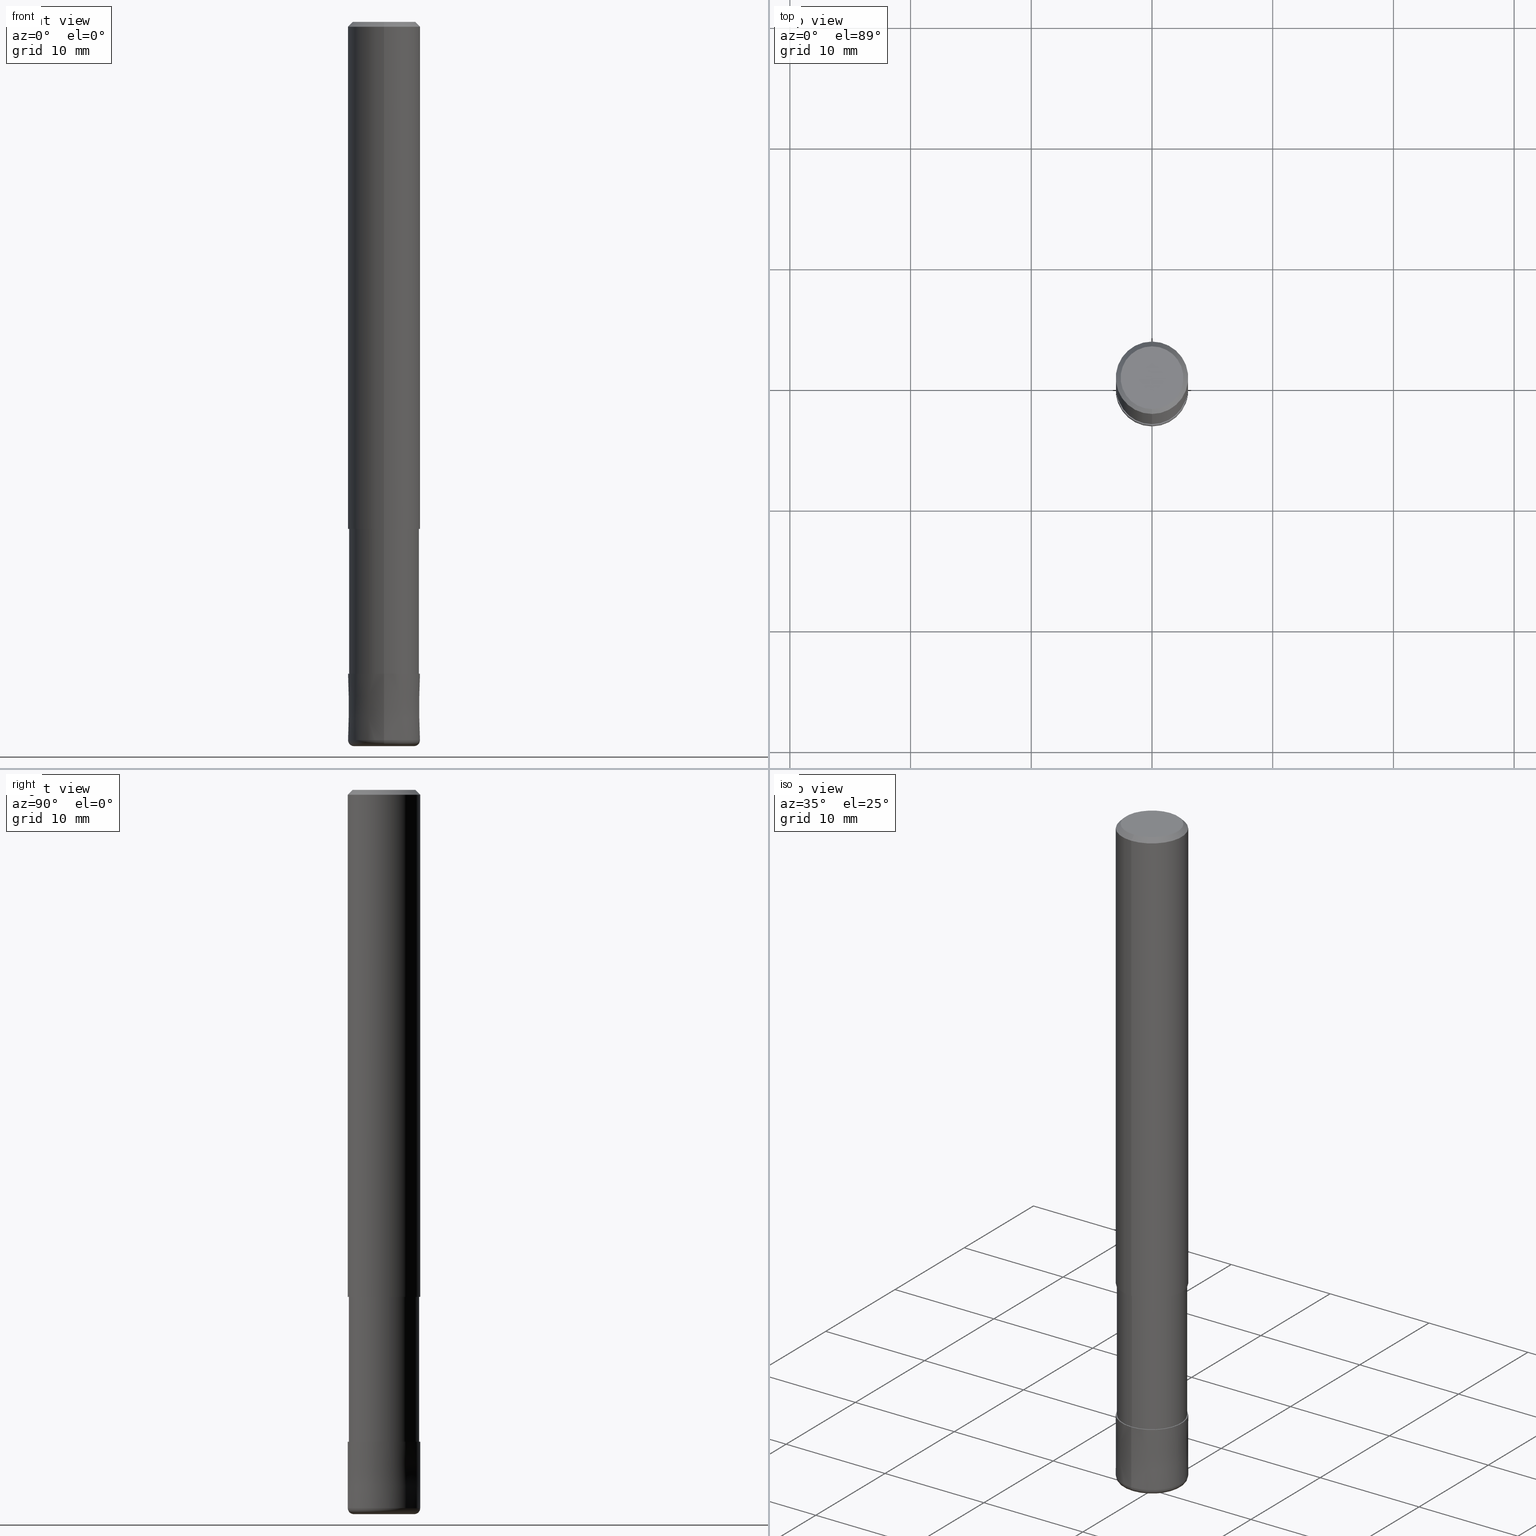
[diagram: canonical four-view strip — front | top / right | iso, engineering-drawing reading convention]
A machine part, canonical four-view strip (front | top / right | iso — engineering-drawing reading convention). The complete STEP part file that produces these views, byte-faithful:
ISO-10303-21;
HEADER;
FILE_DESCRIPTION(('no description'),'unknown implementation level');
FILE_NAME('CRRS4060-05-18-Huellk.stp','  ',('CIMSOURCE GmbH'),('CADClick - KiM GmbH - www.kimweb.de'),'unknown preprocess','ACIS','unknown authorization');
FILE_SCHEMA(('automotive_design'));
ENDSEC;
DATA;
#1=MECHANICAL_DESIGN_GEOMETRIC_PRESENTATION_REPRESENTATION(' ',(#14,#15,#16,#17,#18,#19,#20,#21,#22,#23,#24,#25,#26,#27,#28,#29,#30,#31,#32,#33,#34,#35,#36,#37,#38,#39,#40,#41,#42,#43,#44,#45,#46,#47,#48,#49,#50,#51,#52,#53,#54,#55,#56,#57,#58,#59,#60,#61,#62,#63,#64,#65,#66,#67,#68,#69,#70,#71,#72),#10);
#2=PRODUCT_DEFINITION_CONTEXT('',#73,'design');
#3=APPLICATION_PROTOCOL_DEFINITION('INTERNATIONAL STANDARD','automotive_design',1994,#73);
#4=PRODUCT_CATEGORY_RELATIONSHIP('NONE','NONE',#74,#75);
#5=SHAPE_DEFINITION_REPRESENTATION(#76,#77);
#6=PRODUCT_DEFINITION_CONTEXT('',#78,'design');
#7=APPLICATION_PROTOCOL_DEFINITION('INTERNATIONAL STANDARD','automotive_design',1994,#78);
#8=PRODUCT_CATEGORY_RELATIONSHIP('NONE','NONE',#79,#80);
#9=SHAPE_DEFINITION_REPRESENTATION(#81,#82);
#10= (GEOMETRIC_REPRESENTATION_CONTEXT(3)GLOBAL_UNCERTAINTY_ASSIGNED_CONTEXT((#85))GLOBAL_UNIT_ASSIGNED_CONTEXT((#87,#88,#89))REPRESENTATION_CONTEXT('NONE','WORKSPACE'));
#14=STYLED_ITEM('',(#91),#92);
#15=STYLED_ITEM('',(#93),#94);
#16=STYLED_ITEM('',(#95),#96);
#17=STYLED_ITEM('',(#97),#98);
#18=STYLED_ITEM('',(#99),#100);
#19=STYLED_ITEM('',(#101),#102);
#20=STYLED_ITEM('',(#103),#104);
#21=STYLED_ITEM('',(#105),#106);
#22=STYLED_ITEM('',(#107),#108);
#23=STYLED_ITEM('',(#109),#110);
#24=STYLED_ITEM('',(#111),#112);
#25=STYLED_ITEM('',(#113),#114);
#26=STYLED_ITEM('',(#115),#116);
#27=STYLED_ITEM('',(#117),#118);
#28=STYLED_ITEM('',(#119),#120);
#29=STYLED_ITEM('',(#121),#122);
#30=STYLED_ITEM('',(#123),#124);
#31=STYLED_ITEM('',(#125),#126);
#32=STYLED_ITEM('',(#127),#128);
#33=STYLED_ITEM('',(#129),#130);
#34=STYLED_ITEM('',(#131),#132);
#35=STYLED_ITEM('',(#133),#134);
#36=STYLED_ITEM('',(#135),#136);
#37=STYLED_ITEM('',(#137),#138);
#38=STYLED_ITEM('',(#139),#140);
#39=STYLED_ITEM('',(#141),#142);
#40=STYLED_ITEM('',(#143),#144);
#41=STYLED_ITEM('',(#145),#146);
#42=STYLED_ITEM('',(#147),#148);
#43=STYLED_ITEM('',(#149),#150);
#44=STYLED_ITEM('',(#151),#152);
#45=STYLED_ITEM('',(#153),#154);
#46=STYLED_ITEM('',(#155),#156);
#47=STYLED_ITEM('',(#157),#158);
#48=STYLED_ITEM('',(#159),#160);
#49=STYLED_ITEM('',(#161),#162);
#50=STYLED_ITEM('',(#163),#164);
#51=STYLED_ITEM('',(#165),#166);
#52=STYLED_ITEM('',(#167),#168);
#53=STYLED_ITEM('',(#169),#170);
#54=STYLED_ITEM('',(#171),#172);
#55=STYLED_ITEM('',(#173),#174);
#56=STYLED_ITEM('',(#175),#176);
#57=STYLED_ITEM('',(#177),#178);
#58=STYLED_ITEM('',(#179),#180);
#59=STYLED_ITEM('',(#181),#182);
#60=STYLED_ITEM('',(#183),#184);
#61=STYLED_ITEM('',(#185),#186);
#62=STYLED_ITEM('',(#187),#188);
#63=STYLED_ITEM('',(#189),#190);
#64=STYLED_ITEM('',(#191),#192);
#65=STYLED_ITEM('',(#193),#194);
#66=STYLED_ITEM('',(#195),#196);
#67=STYLED_ITEM('',(#197),#198);
#68=STYLED_ITEM('',(#199),#200);
#69=STYLED_ITEM('',(#201),#202);
#70=STYLED_ITEM('',(#203),#204);
#71=STYLED_ITEM('',(#205),#206);
#72=STYLED_ITEM('',(#207),#208);
#73=APPLICATION_CONTEXT(' ');
#74=PRODUCT_CATEGORY('part','NONE');
#75=PRODUCT_RELATED_PRODUCT_CATEGORY('detail',' ',(#209));
#76=PRODUCT_DEFINITION_SHAPE('NONE','NONE',#210);
#77=ADVANCED_BREP_SHAPE_REPRESENTATION('1',(#132,#211),#10);
#78=APPLICATION_CONTEXT(' ');
#79=PRODUCT_CATEGORY('part','NONE');
#80=PRODUCT_RELATED_PRODUCT_CATEGORY('detail',' ',(#212));
#81=PRODUCT_DEFINITION_SHAPE('NONE','NONE',#213);
#82=ADVANCED_BREP_SHAPE_REPRESENTATION('2',(#126,#214),#10);
#85=UNCERTAINTY_MEASURE_WITH_UNIT(LENGTH_MEASURE(1.0E-006),#87,'','');
#87= (CONVERSION_BASED_UNIT('MILLIMETRE',#217)LENGTH_UNIT()NAMED_UNIT(#220));
#88= (NAMED_UNIT(#222)PLANE_ANGLE_UNIT()SI_UNIT($,.RADIAN.));
#89= (NAMED_UNIT(#222)SOLID_ANGLE_UNIT()SI_UNIT($,.STERADIAN.));
#91=PRESENTATION_STYLE_ASSIGNMENT((#228));
#92=EDGE_CURVE('',#186,#194,#229,.T.);
#93=PRESENTATION_STYLE_ASSIGNMENT((#230));
#94=VERTEX_POINT('',#231);
#95=PRESENTATION_STYLE_ASSIGNMENT((#232));
#96=EDGE_CURVE('',#150,#166,#233,.T.);
#97=PRESENTATION_STYLE_ASSIGNMENT((#234));
#98=EDGE_CURVE('',#160,#186,#235,.T.);
#99=PRESENTATION_STYLE_ASSIGNMENT((#236));
#100=EDGE_CURVE('',#194,#158,#237,.T.);
#101=PRESENTATION_STYLE_ASSIGNMENT((#238));
#102=EDGE_CURVE('',#194,#162,#239,.T.);
#103=PRESENTATION_STYLE_ASSIGNMENT((#240));
#104=ADVANCED_FACE('',(#241),#242,.T.);
#105=PRESENTATION_STYLE_ASSIGNMENT((#243));
#106=EDGE_CURVE('',#190,#156,#244,.T.);
#107=PRESENTATION_STYLE_ASSIGNMENT((#245));
#108=VERTEX_POINT('',#246);
#109=PRESENTATION_STYLE_ASSIGNMENT((#247));
#110=EDGE_CURVE('',#164,#108,#248,.T.);
#111=PRESENTATION_STYLE_ASSIGNMENT((#249));
#112=EDGE_CURVE('',#142,#162,#250,.T.);
#113=PRESENTATION_STYLE_ASSIGNMENT((#251));
#114=VERTEX_POINT('',#252);
#115=PRESENTATION_STYLE_ASSIGNMENT((#253));
#116=ADVANCED_FACE('',(#254),#255,.T.);
#117=PRESENTATION_STYLE_ASSIGNMENT((#256));
#118=EDGE_CURVE('',#160,#158,#257,.T.);
#119=PRESENTATION_STYLE_ASSIGNMENT((#258));
#120=ADVANCED_FACE('',(#259),#260,.T.);
#121=PRESENTATION_STYLE_ASSIGNMENT((#261));
#122=ADVANCED_FACE('',(#262),#263,.T.);
#123=PRESENTATION_STYLE_ASSIGNMENT((#264));
#124=EDGE_CURVE('',#114,#138,#265,.T.);
#125=PRESENTATION_STYLE_ASSIGNMENT((#266));
#126=MANIFOLD_SOLID_BREP('2',#267);
#127=PRESENTATION_STYLE_ASSIGNMENT((#268));
#128=ADVANCED_FACE('',(#269),#270,.T.);
#129=PRESENTATION_STYLE_ASSIGNMENT((#271));
#130=EDGE_CURVE('',#158,#160,#272,.T.);
#131=PRESENTATION_STYLE_ASSIGNMENT((#273));
#132=MANIFOLD_SOLID_BREP('1',#274);
#133=PRESENTATION_STYLE_ASSIGNMENT((#275));
#134=EDGE_CURVE('',#194,#186,#276,.T.);
#135=PRESENTATION_STYLE_ASSIGNMENT((#277));
#136=EDGE_CURVE('',#190,#192,#278,.T.);
#137=PRESENTATION_STYLE_ASSIGNMENT((#279));
#138=VERTEX_POINT('',#280);
#139=PRESENTATION_STYLE_ASSIGNMENT((#281));
#140=EDGE_CURVE('',#166,#150,#282,.T.);
#141=PRESENTATION_STYLE_ASSIGNMENT((#283));
#142=VERTEX_POINT('',#284);
#143=PRESENTATION_STYLE_ASSIGNMENT((#285));
#144=ADVANCED_FACE('',(#286),#287,.T.);
#145=PRESENTATION_STYLE_ASSIGNMENT((#288));
#146=EDGE_CURVE('',#94,#192,#289,.T.);
#147=PRESENTATION_STYLE_ASSIGNMENT((#290));
#148=ADVANCED_FACE('',(#291),#292,.T.);
#149=PRESENTATION_STYLE_ASSIGNMENT((#293));
#150=VERTEX_POINT('',#294);
#151=PRESENTATION_STYLE_ASSIGNMENT((#295));
#152=EDGE_CURVE('',#162,#142,#296,.T.);
#153=PRESENTATION_STYLE_ASSIGNMENT((#297));
#154=ADVANCED_FACE('',(#298),#299,.T.);
#155=PRESENTATION_STYLE_ASSIGNMENT((#300));
#156=VERTEX_POINT('',#301);
#157=PRESENTATION_STYLE_ASSIGNMENT((#302));
#158=VERTEX_POINT('',#303);
#159=PRESENTATION_STYLE_ASSIGNMENT((#304));
#160=VERTEX_POINT('',#305);
#161=PRESENTATION_STYLE_ASSIGNMENT((#306));
#162=VERTEX_POINT('',#307);
#163=PRESENTATION_STYLE_ASSIGNMENT((#308));
#164=VERTEX_POINT('',#309);
#165=PRESENTATION_STYLE_ASSIGNMENT((#310));
#166=VERTEX_POINT('',#311);
#167=PRESENTATION_STYLE_ASSIGNMENT((#312));
#168=EDGE_CURVE('',#108,#164,#313,.T.);
#169=PRESENTATION_STYLE_ASSIGNMENT((#314));
#170=EDGE_CURVE('',#108,#150,#315,.T.);
#171=PRESENTATION_STYLE_ASSIGNMENT((#316));
#172=EDGE_CURVE('',#94,#156,#317,.T.);
#173=PRESENTATION_STYLE_ASSIGNMENT((#318));
#174=ADVANCED_FACE('',(#319),#320,.T.);
#175=PRESENTATION_STYLE_ASSIGNMENT((#321));
#176=ADVANCED_FACE('',(#322,#323),#324,.T.);
#177=PRESENTATION_STYLE_ASSIGNMENT((#325));
#178=ADVANCED_FACE('',(#326),#327,.T.);
#179=PRESENTATION_STYLE_ASSIGNMENT((#328));
#180=ADVANCED_FACE('',(#329),#330,.T.);
#181=PRESENTATION_STYLE_ASSIGNMENT((#331));
#182=EDGE_CURVE('',#166,#164,#332,.T.);
#183=PRESENTATION_STYLE_ASSIGNMENT((#333));
#184=EDGE_CURVE('',#192,#190,#334,.T.);
#185=PRESENTATION_STYLE_ASSIGNMENT((#335));
#186=VERTEX_POINT('',#336);
#187=PRESENTATION_STYLE_ASSIGNMENT((#337));
#188=ADVANCED_FACE('',(#338),#339,.T.);
#189=PRESENTATION_STYLE_ASSIGNMENT((#340));
#190=VERTEX_POINT('',#341);
#191=PRESENTATION_STYLE_ASSIGNMENT((#342));
#192=VERTEX_POINT('',#343);
#193=PRESENTATION_STYLE_ASSIGNMENT((#344));
#194=VERTEX_POINT('',#345);
#195=PRESENTATION_STYLE_ASSIGNMENT((#346));
#196=EDGE_CURVE('',#164,#114,#347,.T.);
#197=PRESENTATION_STYLE_ASSIGNMENT((#348));
#198=ADVANCED_FACE('',(#349),#350,.T.);
#199=PRESENTATION_STYLE_ASSIGNMENT((#351));
#200=EDGE_CURVE('',#142,#186,#352,.T.);
#201=PRESENTATION_STYLE_ASSIGNMENT((#353));
#202=ADVANCED_FACE('',(#354),#355,.T.);
#203=PRESENTATION_STYLE_ASSIGNMENT((#356));
#204=EDGE_CURVE('',#138,#108,#357,.T.);
#205=PRESENTATION_STYLE_ASSIGNMENT((#358));
#206=EDGE_CURVE('',#138,#114,#359,.T.);
#207=PRESENTATION_STYLE_ASSIGNMENT((#360));
#208=EDGE_CURVE('',#156,#94,#361,.T.);
#209=PRODUCT('1','1','PART-1-DESC',(#362));
#210=PRODUCT_DEFINITION('NONE','NONE',#363,#2);
#211=AXIS2_PLACEMENT_3D('',#364,#365,#366);
#212=PRODUCT('2','2','PART-2-DESC',(#367));
#213=PRODUCT_DEFINITION('NONE','NONE',#368,#6);
#214=AXIS2_PLACEMENT_3D('',#369,#370,#371);
#217=LENGTH_MEASURE_WITH_UNIT(LENGTH_MEASURE(1.0),#372);
#220=DIMENSIONAL_EXPONENTS(1.0,0.0,0.0,0.0,0.0,0.0,0.0);
#222=DIMENSIONAL_EXPONENTS(0.0,0.0,0.0,0.0,0.0,0.0,0.0);
#228=CURVE_STYLE('',#373,POSITIVE_LENGTH_MEASURE(1.0E-006),#374);
#229=CIRCLE('',#375,3.0);
#230=POINT_STYLE(' ',#376,POSITIVE_LENGTH_MEASURE(1.0E-006),#377);
#231=CARTESIAN_POINT('',(3.56354325930543E-016,-2.90995,-54.0));
#232=CURVE_STYLE('',#378,POSITIVE_LENGTH_MEASURE(1.0E-006),#379);
#233=CIRCLE('',#380,3.0);
#234=CURVE_STYLE('',#381,POSITIVE_LENGTH_MEASURE(1.0E-006),#382);
#235=CIRCLE('',#383,0.500000000000001);
#236=CURVE_STYLE('',#384,POSITIVE_LENGTH_MEASURE(1.0E-006),#385);
#237=CIRCLE('',#386,0.500000000000001);
#238=CURVE_STYLE('',#387,POSITIVE_LENGTH_MEASURE(1.0E-006),#388);
#239=LINE('',#389,#390);
#240=SURFACE_STYLE_USAGE(.BOTH.,#391);
#241=FACE_OUTER_BOUND('',#392,.T.);
#242=TOROIDAL_SURFACE('',#393,2.5,0.500000000000001);
#243=CURVE_STYLE('',#394,POSITIVE_LENGTH_MEASURE(1.0E-006),#395);
#244=LINE('',#396,#397);
#245=POINT_STYLE(' ',#398,POSITIVE_LENGTH_MEASURE(1.0E-006),#399);
#246=CARTESIAN_POINT('',(0.0,3.0,-0.399999999999999));
#247=CURVE_STYLE('',#400,POSITIVE_LENGTH_MEASURE(1.0E-006),#401);
#248=CIRCLE('',#402,3.0);
#249=CURVE_STYLE('',#403,POSITIVE_LENGTH_MEASURE(1.0E-006),#404);
#250=CIRCLE('',#405,2.9999);
#251=POINT_STYLE(' ',#406,POSITIVE_LENGTH_MEASURE(1.0E-006),#407);
#252=CARTESIAN_POINT('',(3.18397651993818E-016,-2.6,0.0));
#253=SURFACE_STYLE_USAGE(.BOTH.,#408);
#254=FACE_OUTER_BOUND('',#409,.T.);
#255=CONICAL_SURFACE('',#410,2.99995,1.8181818179853E-005);
#256=CURVE_STYLE('',#411,POSITIVE_LENGTH_MEASURE(1.0E-006),#412);
#257=CIRCLE('',#413,2.5);
#258=SURFACE_STYLE_USAGE(.BOTH.,#414);
#259=FACE_OUTER_BOUND('',#415,.T.);
#260=CYLINDRICAL_SURFACE('',#416,3.0);
#261=SURFACE_STYLE_USAGE(.BOTH.,#417);
#262=FACE_OUTER_BOUND('',#418,.T.);
#263=PLANE('',#419);
#264=CURVE_STYLE('',#420,POSITIVE_LENGTH_MEASURE(1.0E-006),#421);
#265=CIRCLE('',#422,2.6);
#266=SURFACE_STYLE_USAGE(.BOTH.,#423);
#267=CLOSED_SHELL('',(#148,#154,#180,#116,#104,#198));
#268=SURFACE_STYLE_USAGE(.BOTH.,#424);
#269=FACE_OUTER_BOUND('',#425,.T.);
#270=CONICAL_SURFACE('',#426,2.8,0.78539816339745);
#271=CURVE_STYLE('',#427,POSITIVE_LENGTH_MEASURE(1.0E-006),#428);
#272=CIRCLE('',#429,2.5);
#273=SURFACE_STYLE_USAGE(.BOTH.,#430);
#274=CLOSED_SHELL('',(#144,#120,#128,#176,#178,#202,#188,#174,#122));
#275=CURVE_STYLE('',#431,POSITIVE_LENGTH_MEASURE(1.0E-006),#432);
#276=CIRCLE('',#433,3.0);
#277=CURVE_STYLE('',#434,POSITIVE_LENGTH_MEASURE(1.0E-006),#435);
#278=CIRCLE('',#436,2.90995);
#279=POINT_STYLE(' ',#437,POSITIVE_LENGTH_MEASURE(1.0E-006),#438);
#280=CARTESIAN_POINT('',(0.0,2.6,0.0));
#281=CURVE_STYLE('',#439,POSITIVE_LENGTH_MEASURE(1.0E-006),#440);
#282=CIRCLE('',#441,3.0);
#283=POINT_STYLE(' ',#442,POSITIVE_LENGTH_MEASURE(1.0E-006),#443);
#284=CARTESIAN_POINT('',(0.0,2.9999,-54.0));
#285=SURFACE_STYLE_USAGE(.BOTH.,#444);
#286=FACE_OUTER_BOUND('',#445,.T.);
#287=CYLINDRICAL_SURFACE('',#446,2.90995);
#288=CURVE_STYLE('',#447,POSITIVE_LENGTH_MEASURE(1.0E-006),#448);
#289=LINE('',#449,#450);
#290=SURFACE_STYLE_USAGE(.BOTH.,#451);
#291=FACE_OUTER_BOUND('',#452,.T.);
#292=TOROIDAL_SURFACE('',#453,2.5,0.500000000000001);
#293=POINT_STYLE(' ',#454,POSITIVE_LENGTH_MEASURE(1.0E-006),#455);
#294=CARTESIAN_POINT('',(0.0,3.0,-42.0));
#295=CURVE_STYLE('',#456,POSITIVE_LENGTH_MEASURE(1.0E-006),#457);
#296=CIRCLE('',#458,2.9999);
#297=SURFACE_STYLE_USAGE(.BOTH.,#459);
#298=FACE_OUTER_BOUND('',#460,.T.);
#299=CONICAL_SURFACE('',#461,2.99995,1.8181818179853E-005);
#300=POINT_STYLE(' ',#462,POSITIVE_LENGTH_MEASURE(1.0E-006),#463);
#301=CARTESIAN_POINT('',(0.0,2.90995,-54.0));
#302=POINT_STYLE(' ',#464,POSITIVE_LENGTH_MEASURE(1.0E-006),#465);
#303=CARTESIAN_POINT('',(3.06151588455594E-016,-2.5,-60.0));
#304=POINT_STYLE(' ',#466,POSITIVE_LENGTH_MEASURE(1.0E-006),#467);
#305=CARTESIAN_POINT('',(0.0,2.5,-60.0));
#306=POINT_STYLE(' ',#468,POSITIVE_LENGTH_MEASURE(1.0E-006),#469);
#307=CARTESIAN_POINT('',(3.67369660083175E-016,-2.9999,-54.0));
#308=POINT_STYLE(' ',#470,POSITIVE_LENGTH_MEASURE(1.0E-006),#471);
#309=CARTESIAN_POINT('',(3.67381906146713E-016,-3.0,-0.399999999999999));
#310=POINT_STYLE(' ',#472,POSITIVE_LENGTH_MEASURE(1.0E-006),#473);
#311=CARTESIAN_POINT('',(3.67381906146713E-016,-3.0,-42.0));
#312=CURVE_STYLE('',#474,POSITIVE_LENGTH_MEASURE(1.0E-006),#475);
#313=CIRCLE('',#476,3.0);
#314=CURVE_STYLE('',#477,POSITIVE_LENGTH_MEASURE(1.0E-006),#478);
#315=LINE('',#479,#480);
#316=CURVE_STYLE('',#481,POSITIVE_LENGTH_MEASURE(1.0E-006),#482);
#317=CIRCLE('',#483,2.90995);
#318=SURFACE_STYLE_USAGE(.BOTH.,#484);
#319=FACE_OUTER_BOUND('',#485,.T.);
#320=CYLINDRICAL_SURFACE('',#486,2.90995);
#321=SURFACE_STYLE_USAGE(.BOTH.,#487);
#322=FACE_OUTER_BOUND('',#488,.T.);
#323=FACE_BOUND('',#489,.T.);
#324=PLANE('',#490);
#325=SURFACE_STYLE_USAGE(.BOTH.,#491);
#326=FACE_OUTER_BOUND('',#492,.T.);
#327=PLANE('',#493);
#328=SURFACE_STYLE_USAGE(.BOTH.,#494);
#329=FACE_OUTER_BOUND('',#495,.T.);
#330=PLANE('',#496);
#331=CURVE_STYLE('',#497,POSITIVE_LENGTH_MEASURE(1.0E-006),#498);
#332=LINE('',#499,#500);
#333=CURVE_STYLE('',#501,POSITIVE_LENGTH_MEASURE(1.0E-006),#502);
#334=CIRCLE('',#503,2.90995);
#335=POINT_STYLE(' ',#504,POSITIVE_LENGTH_MEASURE(1.0E-006),#505);
#336=CARTESIAN_POINT('',(0.0,3.0,-59.5));
#337=SURFACE_STYLE_USAGE(.BOTH.,#506);
#338=FACE_OUTER_BOUND('',#507,.T.);
#339=CYLINDRICAL_SURFACE('',#508,3.0);
#340=POINT_STYLE(' ',#509,POSITIVE_LENGTH_MEASURE(1.0E-006),#510);
#341=CARTESIAN_POINT('',(0.0,2.90995,-42.0));
#342=POINT_STYLE(' ',#511,POSITIVE_LENGTH_MEASURE(1.0E-006),#512);
#343=CARTESIAN_POINT('',(3.56354325930543E-016,-2.90995,-42.0));
#344=POINT_STYLE(' ',#513,POSITIVE_LENGTH_MEASURE(1.0E-006),#514);
#345=CARTESIAN_POINT('',(3.67381906146713E-016,-3.0,-59.5));
#346=CURVE_STYLE('',#515,POSITIVE_LENGTH_MEASURE(1.0E-006),#516);
#347=LINE('',#517,#518);
#348=SURFACE_STYLE_USAGE(.BOTH.,#519);
#349=FACE_OUTER_BOUND('',#520,.T.);
#350=PLANE('',#521);
#351=CURVE_STYLE('',#522,POSITIVE_LENGTH_MEASURE(1.0E-006),#523);
#352=LINE('',#524,#525);
#353=SURFACE_STYLE_USAGE(.BOTH.,#526);
#354=FACE_OUTER_BOUND('',#527,.T.);
#355=CONICAL_SURFACE('',#528,2.8,0.78539816339745);
#356=CURVE_STYLE('',#529,POSITIVE_LENGTH_MEASURE(1.0E-006),#530);
#357=LINE('',#531,#532);
#358=CURVE_STYLE('',#533,POSITIVE_LENGTH_MEASURE(1.0E-006),#534);
#359=CIRCLE('',#535,2.6);
#360=CURVE_STYLE('',#536,POSITIVE_LENGTH_MEASURE(1.0E-006),#537);
#361=CIRCLE('',#538,2.90995);
#362=PRODUCT_CONTEXT('',#73,'mechanical');
#363=PRODUCT_DEFINITION_FORMATION_WITH_SPECIFIED_SOURCE(' ','NONE',#209,.NOT_KNOWN.);
#364=CARTESIAN_POINT('',(0.0,0.0,0.0));
#365=DIRECTION('',(0.0,0.0,1.0));
#366=DIRECTION('',(1.0,0.0,0.0));
#367=PRODUCT_CONTEXT('',#78,'mechanical');
#368=PRODUCT_DEFINITION_FORMATION_WITH_SPECIFIED_SOURCE(' ','NONE',#212,.NOT_KNOWN.);
#369=CARTESIAN_POINT('',(0.0,0.0,0.0));
#370=DIRECTION('',(0.0,0.0,1.0));
#371=DIRECTION('',(1.0,0.0,0.0));
#372= (NAMED_UNIT(#220)LENGTH_UNIT()SI_UNIT(.MILLI.,.METRE.));
#373=DRAUGHTING_PRE_DEFINED_CURVE_FONT('continuous');
#374=COLOUR_RGB('',0.800000011920929,0.800000011920929,0.800000011920929);
#375=AXIS2_PLACEMENT_3D('',#540,#541,#542);
#376=PRE_DEFINED_MARKER('');
#377=COLOUR_RGB('',0.498039215803146,0.498039215803146,0.498039215803146);
#378=DRAUGHTING_PRE_DEFINED_CURVE_FONT('continuous');
#379=COLOUR_RGB('',0.498039215803146,0.498039215803146,0.498039215803146);
#380=AXIS2_PLACEMENT_3D('',#543,#544,#545);
#381=DRAUGHTING_PRE_DEFINED_CURVE_FONT('continuous');
#382=COLOUR_RGB('',0.800000011920929,0.800000011920929,0.800000011920929);
#383=AXIS2_PLACEMENT_3D('',#546,#547,#548);
#384=DRAUGHTING_PRE_DEFINED_CURVE_FONT('continuous');
#385=COLOUR_RGB('',0.800000011920929,0.800000011920929,0.800000011920929);
#386=AXIS2_PLACEMENT_3D('',#549,#550,#551);
#387=DRAUGHTING_PRE_DEFINED_CURVE_FONT('continuous');
#388=COLOUR_RGB('',0.800000011920929,0.800000011920929,0.800000011920929);
#389=CARTESIAN_POINT('',(3.67375783114944E-016,-2.99995,-56.75));
#390=VECTOR('',#552,1.0);
#391=SURFACE_SIDE_STYLE('',(#553));
#392=EDGE_LOOP('',(#554,#555,#556,#557));
#393=AXIS2_PLACEMENT_3D('',#558,#559,#560);
#394=DRAUGHTING_PRE_DEFINED_CURVE_FONT('continuous');
#395=COLOUR_RGB('',0.498039215803146,0.498039215803146,0.498039215803146);
#396=CARTESIAN_POINT('',(-3.56354325930543E-016,2.90995,-48.0));
#397=VECTOR('',#561,1.0);
#398=PRE_DEFINED_MARKER('');
#399=COLOUR_RGB('',0.498039215803146,0.498039215803146,0.498039215803146);
#400=DRAUGHTING_PRE_DEFINED_CURVE_FONT('continuous');
#401=COLOUR_RGB('',0.498039215803146,0.498039215803146,0.498039215803146);
#402=AXIS2_PLACEMENT_3D('',#562,#563,#564);
#403=DRAUGHTING_PRE_DEFINED_CURVE_FONT('continuous');
#404=COLOUR_RGB('',0.800000011920929,0.800000011920929,0.800000011920929);
#405=AXIS2_PLACEMENT_3D('',#565,#566,#567);
#406=PRE_DEFINED_MARKER('');
#407=COLOUR_RGB('',0.498039215803146,0.498039215803146,0.498039215803146);
#408=SURFACE_SIDE_STYLE('',(#568));
#409=EDGE_LOOP('',(#569,#570,#571,#572));
#410=AXIS2_PLACEMENT_3D('',#573,#574,#575);
#411=DRAUGHTING_PRE_DEFINED_CURVE_FONT('continuous');
#412=COLOUR_RGB('',0.800000011920929,0.800000011920929,0.800000011920929);
#413=AXIS2_PLACEMENT_3D('',#576,#577,#578);
#414=SURFACE_SIDE_STYLE('',(#579));
#415=EDGE_LOOP('',(#580,#581,#582,#583));
#416=AXIS2_PLACEMENT_3D('',#584,#585,#586);
#417=SURFACE_SIDE_STYLE('',(#587));
#418=EDGE_LOOP('',(#588,#589));
#419=AXIS2_PLACEMENT_3D('',#590,#591,#592);
#420=DRAUGHTING_PRE_DEFINED_CURVE_FONT('continuous');
#421=COLOUR_RGB('',0.498039215803146,0.498039215803146,0.498039215803146);
#422=AXIS2_PLACEMENT_3D('',#593,#594,#595);
#423=SURFACE_SIDE_STYLE('',(#596));
#424=SURFACE_SIDE_STYLE('',(#597));
#425=EDGE_LOOP('',(#598,#599,#600,#601));
#426=AXIS2_PLACEMENT_3D('',#602,#603,#604);
#427=DRAUGHTING_PRE_DEFINED_CURVE_FONT('continuous');
#428=COLOUR_RGB('',0.800000011920929,0.800000011920929,0.800000011920929);
#429=AXIS2_PLACEMENT_3D('',#605,#606,#607);
#430=SURFACE_SIDE_STYLE('',(#608));
#431=DRAUGHTING_PRE_DEFINED_CURVE_FONT('continuous');
#432=COLOUR_RGB('',0.800000011920929,0.800000011920929,0.800000011920929);
#433=AXIS2_PLACEMENT_3D('',#609,#610,#611);
#434=DRAUGHTING_PRE_DEFINED_CURVE_FONT('continuous');
#435=COLOUR_RGB('',0.498039215803146,0.498039215803146,0.498039215803146);
#436=AXIS2_PLACEMENT_3D('',#612,#613,#614);
#437=PRE_DEFINED_MARKER('');
#438=COLOUR_RGB('',0.498039215803146,0.498039215803146,0.498039215803146);
#439=DRAUGHTING_PRE_DEFINED_CURVE_FONT('continuous');
#440=COLOUR_RGB('',0.498039215803146,0.498039215803146,0.498039215803146);
#441=AXIS2_PLACEMENT_3D('',#615,#616,#617);
#442=PRE_DEFINED_MARKER('');
#443=COLOUR_RGB('',0.800000011920929,0.800000011920929,0.800000011920929);
#444=SURFACE_SIDE_STYLE('',(#618));
#445=EDGE_LOOP('',(#619,#620,#621,#622));
#446=AXIS2_PLACEMENT_3D('',#623,#624,#625);
#447=DRAUGHTING_PRE_DEFINED_CURVE_FONT('continuous');
#448=COLOUR_RGB('',0.498039215803146,0.498039215803146,0.498039215803146);
#449=CARTESIAN_POINT('',(3.56354325930543E-016,-2.90995,-48.0));
#450=VECTOR('',#626,1.0);
#451=SURFACE_SIDE_STYLE('',(#627));
#452=EDGE_LOOP('',(#628,#629,#630,#631));
#453=AXIS2_PLACEMENT_3D('',#632,#633,#634);
#454=PRE_DEFINED_MARKER('');
#455=COLOUR_RGB('',0.498039215803146,0.498039215803146,0.498039215803146);
#456=DRAUGHTING_PRE_DEFINED_CURVE_FONT('continuous');
#457=COLOUR_RGB('',0.800000011920929,0.800000011920929,0.800000011920929);
#458=AXIS2_PLACEMENT_3D('',#635,#636,#637);
#459=SURFACE_SIDE_STYLE('',(#638));
#460=EDGE_LOOP('',(#639,#640,#641,#642));
#461=AXIS2_PLACEMENT_3D('',#643,#644,#645);
#462=PRE_DEFINED_MARKER('');
#463=COLOUR_RGB('',0.498039215803146,0.498039215803146,0.498039215803146);
#464=PRE_DEFINED_MARKER('');
#465=COLOUR_RGB('',0.800000011920929,0.800000011920929,0.800000011920929);
#466=PRE_DEFINED_MARKER('');
#467=COLOUR_RGB('',0.800000011920929,0.800000011920929,0.800000011920929);
#468=PRE_DEFINED_MARKER('');
#469=COLOUR_RGB('',0.800000011920929,0.800000011920929,0.800000011920929);
#470=PRE_DEFINED_MARKER('');
#471=COLOUR_RGB('',0.498039215803146,0.498039215803146,0.498039215803146);
#472=PRE_DEFINED_MARKER('');
#473=COLOUR_RGB('',0.498039215803146,0.498039215803146,0.498039215803146);
#474=DRAUGHTING_PRE_DEFINED_CURVE_FONT('continuous');
#475=COLOUR_RGB('',0.498039215803146,0.498039215803146,0.498039215803146);
#476=AXIS2_PLACEMENT_3D('',#646,#647,#648);
#477=DRAUGHTING_PRE_DEFINED_CURVE_FONT('continuous');
#478=COLOUR_RGB('',0.498039215803146,0.498039215803146,0.498039215803146);
#479=CARTESIAN_POINT('',(-3.67381906146713E-016,3.0,-21.2));
#480=VECTOR('',#649,1.0);
#481=DRAUGHTING_PRE_DEFINED_CURVE_FONT('continuous');
#482=COLOUR_RGB('',0.498039215803146,0.498039215803146,0.498039215803146);
#483=AXIS2_PLACEMENT_3D('',#650,#651,#652);
#484=SURFACE_SIDE_STYLE('',(#653));
#485=EDGE_LOOP('',(#654,#655,#656,#657));
#486=AXIS2_PLACEMENT_3D('',#658,#659,#660);
#487=SURFACE_SIDE_STYLE('',(#661));
#488=EDGE_LOOP('',(#662,#663));
#489=EDGE_LOOP('',(#664,#665));
#490=AXIS2_PLACEMENT_3D('',#666,#667,#668);
#491=SURFACE_SIDE_STYLE('',(#669));
#492=EDGE_LOOP('',(#670,#671));
#493=AXIS2_PLACEMENT_3D('',#672,#673,#674);
#494=SURFACE_SIDE_STYLE('',(#675));
#495=EDGE_LOOP('',(#676,#677));
#496=AXIS2_PLACEMENT_3D('',#678,#679,#680);
#497=DRAUGHTING_PRE_DEFINED_CURVE_FONT('continuous');
#498=COLOUR_RGB('',0.498039215803146,0.498039215803146,0.498039215803146);
#499=CARTESIAN_POINT('',(3.67381906146713E-016,-3.0,-21.2));
#500=VECTOR('',#681,1.0);
#501=DRAUGHTING_PRE_DEFINED_CURVE_FONT('continuous');
#502=COLOUR_RGB('',0.498039215803146,0.498039215803146,0.498039215803146);
#503=AXIS2_PLACEMENT_3D('',#682,#683,#684);
#504=PRE_DEFINED_MARKER('');
#505=COLOUR_RGB('',0.800000011920929,0.800000011920929,0.800000011920929);
#506=SURFACE_SIDE_STYLE('',(#685));
#507=EDGE_LOOP('',(#686,#687,#688,#689));
#508=AXIS2_PLACEMENT_3D('',#690,#691,#692);
#509=PRE_DEFINED_MARKER('');
#510=COLOUR_RGB('',0.498039215803146,0.498039215803146,0.498039215803146);
#511=PRE_DEFINED_MARKER('');
#512=COLOUR_RGB('',0.498039215803146,0.498039215803146,0.498039215803146);
#513=PRE_DEFINED_MARKER('');
#514=COLOUR_RGB('',0.800000011920929,0.800000011920929,0.800000011920929);
#515=DRAUGHTING_PRE_DEFINED_CURVE_FONT('continuous');
#516=COLOUR_RGB('',0.498039215803146,0.498039215803146,0.498039215803146);
#517=CARTESIAN_POINT('',(3.42889779070266E-016,-2.8,-0.199999999999996));
#518=VECTOR('',#693,1.0);
#519=SURFACE_SIDE_STYLE('',(#694));
#520=EDGE_LOOP('',(#695,#696));
#521=AXIS2_PLACEMENT_3D('',#697,#698,#699);
#522=DRAUGHTING_PRE_DEFINED_CURVE_FONT('continuous');
#523=COLOUR_RGB('',0.800000011920929,0.800000011920929,0.800000011920929);
#524=CARTESIAN_POINT('',(-3.67375783114944E-016,2.99995,-56.75));
#525=VECTOR('',#700,1.0);
#526=SURFACE_SIDE_STYLE('',(#701));
#527=EDGE_LOOP('',(#702,#703,#704,#705));
#528=AXIS2_PLACEMENT_3D('',#706,#707,#708);
#529=DRAUGHTING_PRE_DEFINED_CURVE_FONT('continuous');
#530=COLOUR_RGB('',0.498039215803146,0.498039215803146,0.498039215803146);
#531=CARTESIAN_POINT('',(-3.42889779070266E-016,2.8,-0.199999999999996));
#532=VECTOR('',#709,1.0);
#533=DRAUGHTING_PRE_DEFINED_CURVE_FONT('continuous');
#534=COLOUR_RGB('',0.498039215803146,0.498039215803146,0.498039215803146);
#535=AXIS2_PLACEMENT_3D('',#710,#711,#712);
#536=DRAUGHTING_PRE_DEFINED_CURVE_FONT('continuous');
#537=COLOUR_RGB('',0.498039215803146,0.498039215803146,0.498039215803146);
#538=AXIS2_PLACEMENT_3D('',#713,#714,#715);
#540=CARTESIAN_POINT('',(0.0,0.0,-59.5));
#541=DIRECTION('',(0.0,0.0,-1.0));
#542=DIRECTION('',(0.0,1.0,0.0));
#543=CARTESIAN_POINT('',(0.0,0.0,-42.0));
#544=DIRECTION('',(0.0,0.0,-1.0));
#545=DIRECTION('',(0.0,1.0,0.0));
#546=CARTESIAN_POINT('',(-3.06151588455594E-016,2.5,-59.5));
#547=DIRECTION('',(1.0,1.22460635382238E-016,0.0));
#548=DIRECTION('',(-1.22460635382238E-016,1.0,0.0));
#549=CARTESIAN_POINT('',(3.06151588455594E-016,-2.5,-59.5));
#550=DIRECTION('',(1.0,1.22460635382238E-016,0.0));
#551=DIRECTION('',(1.22460635382238E-016,-1.0,-0.0));
#552=DIRECTION('',(-2.22655700658645E-021,1.81818181788513E-005,0.999999999834711));
#553=SURFACE_STYLE_FILL_AREA(#716);
#554=ORIENTED_EDGE('',*,*,#100,.T.);
#555=ORIENTED_EDGE('',*,*,#118,.F.);
#556=ORIENTED_EDGE('',*,*,#98,.T.);
#557=ORIENTED_EDGE('',*,*,#92,.T.);
#558=CARTESIAN_POINT('',(0.0,0.0,-59.5));
#559=DIRECTION('',(0.0,0.0,-1.0));
#560=DIRECTION('',(0.0,-1.0,0.0));
#561=DIRECTION('',(0.0,0.0,-1.0));
#562=CARTESIAN_POINT('',(0.0,0.0,-0.399999999999999));
#563=DIRECTION('',(0.0,0.0,-1.0));
#564=DIRECTION('',(0.0,1.0,0.0));
#565=CARTESIAN_POINT('',(0.0,0.0,-54.0));
#566=DIRECTION('',(0.0,0.0,-1.0));
#567=DIRECTION('',(0.0,1.0,0.0));
#568=SURFACE_STYLE_FILL_AREA(#717);
#569=ORIENTED_EDGE('',*,*,#200,.T.);
#570=ORIENTED_EDGE('',*,*,#134,.F.);
#571=ORIENTED_EDGE('',*,*,#102,.T.);
#572=ORIENTED_EDGE('',*,*,#152,.T.);
#573=CARTESIAN_POINT('',(0.0,0.0,-56.75));
#574=DIRECTION('',(0.0,-0.0,-1.0));
#575=DIRECTION('',(0.0,1.0,0.0));
#576=CARTESIAN_POINT('',(0.0,0.0,-60.0));
#577=DIRECTION('',(0.0,0.0,-1.0));
#578=DIRECTION('',(0.0,1.0,0.0));
#579=SURFACE_STYLE_FILL_AREA(#718);
#580=ORIENTED_EDGE('',*,*,#170,.F.);
#581=ORIENTED_EDGE('',*,*,#168,.T.);
#582=ORIENTED_EDGE('',*,*,#182,.F.);
#583=ORIENTED_EDGE('',*,*,#96,.F.);
#584=CARTESIAN_POINT('',(0.0,0.0,-21.2));
#585=DIRECTION('',(-0.0,-0.0,1.0));
#586=DIRECTION('',(0.0,1.0,0.0));
#587=SURFACE_STYLE_FILL_AREA(#719);
#588=ORIENTED_EDGE('',*,*,#208,.T.);
#589=ORIENTED_EDGE('',*,*,#172,.T.);
#590=CARTESIAN_POINT('',(0.0,1.454975,-54.0));
#591=DIRECTION('',(0.0,0.0,-1.0));
#592=DIRECTION('',(0.0,1.0,0.0));
#593=CARTESIAN_POINT('',(0.0,0.0,0.0));
#594=DIRECTION('',(0.0,0.0,-1.0));
#595=DIRECTION('',(0.0,1.0,0.0));
#596=SURFACE_STYLE_FILL_AREA(#720);
#597=SURFACE_STYLE_FILL_AREA(#721);
#598=ORIENTED_EDGE('',*,*,#204,.F.);
#599=ORIENTED_EDGE('',*,*,#206,.T.);
#600=ORIENTED_EDGE('',*,*,#196,.F.);
#601=ORIENTED_EDGE('',*,*,#168,.F.);
#602=CARTESIAN_POINT('',(0.0,0.0,-0.199999999999996));
#603=DIRECTION('',(0.0,-0.0,-1.0));
#604=DIRECTION('',(0.0,1.0,0.0));
#605=CARTESIAN_POINT('',(0.0,0.0,-60.0));
#606=DIRECTION('',(0.0,0.0,-1.0));
#607=DIRECTION('',(0.0,1.0,0.0));
#608=SURFACE_STYLE_FILL_AREA(#722);
#609=CARTESIAN_POINT('',(0.0,0.0,-59.5));
#610=DIRECTION('',(0.0,0.0,-1.0));
#611=DIRECTION('',(0.0,1.0,0.0));
#612=CARTESIAN_POINT('',(0.0,0.0,-42.0));
#613=DIRECTION('',(0.0,0.0,-1.0));
#614=DIRECTION('',(0.0,1.0,0.0));
#615=CARTESIAN_POINT('',(0.0,0.0,-42.0));
#616=DIRECTION('',(0.0,0.0,-1.0));
#617=DIRECTION('',(0.0,1.0,0.0));
#618=SURFACE_STYLE_FILL_AREA(#723);
#619=ORIENTED_EDGE('',*,*,#106,.F.);
#620=ORIENTED_EDGE('',*,*,#136,.T.);
#621=ORIENTED_EDGE('',*,*,#146,.F.);
#622=ORIENTED_EDGE('',*,*,#208,.F.);
#623=CARTESIAN_POINT('',(0.0,0.0,-48.0));
#624=DIRECTION('',(-0.0,-0.0,1.0));
#625=DIRECTION('',(0.0,1.0,0.0));
#626=DIRECTION('',(-0.0,-0.0,1.0));
#627=SURFACE_STYLE_FILL_AREA(#724);
#628=ORIENTED_EDGE('',*,*,#100,.F.);
#629=ORIENTED_EDGE('',*,*,#134,.T.);
#630=ORIENTED_EDGE('',*,*,#98,.F.);
#631=ORIENTED_EDGE('',*,*,#130,.F.);
#632=CARTESIAN_POINT('',(0.0,0.0,-59.5));
#633=DIRECTION('',(0.0,0.0,-1.0));
#634=DIRECTION('',(0.0,-1.0,0.0));
#635=CARTESIAN_POINT('',(0.0,0.0,-54.0));
#636=DIRECTION('',(0.0,0.0,-1.0));
#637=DIRECTION('',(0.0,1.0,0.0));
#638=SURFACE_STYLE_FILL_AREA(#725);
#639=ORIENTED_EDGE('',*,*,#200,.F.);
#640=ORIENTED_EDGE('',*,*,#112,.T.);
#641=ORIENTED_EDGE('',*,*,#102,.F.);
#642=ORIENTED_EDGE('',*,*,#92,.F.);
#643=CARTESIAN_POINT('',(0.0,0.0,-56.75));
#644=DIRECTION('',(0.0,-0.0,-1.0));
#645=DIRECTION('',(0.0,1.0,0.0));
#646=CARTESIAN_POINT('',(0.0,0.0,-0.399999999999999));
#647=DIRECTION('',(0.0,0.0,-1.0));
#648=DIRECTION('',(0.0,1.0,0.0));
#649=DIRECTION('',(0.0,0.0,-1.0));
#650=CARTESIAN_POINT('',(0.0,0.0,-54.0));
#651=DIRECTION('',(0.0,0.0,-1.0));
#652=DIRECTION('',(0.0,1.0,0.0));
#653=SURFACE_STYLE_FILL_AREA(#726);
#654=ORIENTED_EDGE('',*,*,#106,.T.);
#655=ORIENTED_EDGE('',*,*,#172,.F.);
#656=ORIENTED_EDGE('',*,*,#146,.T.);
#657=ORIENTED_EDGE('',*,*,#184,.T.);
#658=CARTESIAN_POINT('',(0.0,0.0,-48.0));
#659=DIRECTION('',(-0.0,-0.0,1.0));
#660=DIRECTION('',(0.0,1.0,0.0));
#661=SURFACE_STYLE_FILL_AREA(#727);
#662=ORIENTED_EDGE('',*,*,#96,.T.);
#663=ORIENTED_EDGE('',*,*,#140,.T.);
#664=ORIENTED_EDGE('',*,*,#136,.F.);
#665=ORIENTED_EDGE('',*,*,#184,.F.);
#666=CARTESIAN_POINT('',(0.0,1.5,-42.0));
#667=DIRECTION('',(0.0,0.0,-1.0));
#668=DIRECTION('',(0.0,1.0,0.0));
#669=SURFACE_STYLE_FILL_AREA(#728);
#670=ORIENTED_EDGE('',*,*,#206,.F.);
#671=ORIENTED_EDGE('',*,*,#124,.F.);
#672=CARTESIAN_POINT('',(0.0,1.3,0.0));
#673=DIRECTION('',(-0.0,0.0,1.0));
#674=DIRECTION('',(0.0,-1.0,0.0));
#675=SURFACE_STYLE_FILL_AREA(#729);
#676=ORIENTED_EDGE('',*,*,#112,.F.);
#677=ORIENTED_EDGE('',*,*,#152,.F.);
#678=CARTESIAN_POINT('',(0.0,1.49995,-54.0));
#679=DIRECTION('',(-0.0,0.0,1.0));
#680=DIRECTION('',(0.0,-1.0,0.0));
#681=DIRECTION('',(-0.0,-0.0,1.0));
#682=CARTESIAN_POINT('',(0.0,0.0,-42.0));
#683=DIRECTION('',(0.0,0.0,-1.0));
#684=DIRECTION('',(0.0,1.0,0.0));
#685=SURFACE_STYLE_FILL_AREA(#730);
#686=ORIENTED_EDGE('',*,*,#170,.T.);
#687=ORIENTED_EDGE('',*,*,#140,.F.);
#688=ORIENTED_EDGE('',*,*,#182,.T.);
#689=ORIENTED_EDGE('',*,*,#110,.T.);
#690=CARTESIAN_POINT('',(0.0,0.0,-21.2));
#691=DIRECTION('',(-0.0,-0.0,1.0));
#692=DIRECTION('',(0.0,1.0,0.0));
#693=DIRECTION('',(-8.65927457071937E-017,0.707106781186549,0.707106781186546));
#694=SURFACE_STYLE_FILL_AREA(#731);
#695=ORIENTED_EDGE('',*,*,#118,.T.);
#696=ORIENTED_EDGE('',*,*,#130,.T.);
#697=CARTESIAN_POINT('',(0.0,1.25,-60.0));
#698=DIRECTION('',(0.0,0.0,-1.0));
#699=DIRECTION('',(0.0,1.0,0.0));
#700=DIRECTION('',(-2.22655700658645E-021,1.81818181788513E-005,-0.999999999834711));
#701=SURFACE_STYLE_FILL_AREA(#732);
#702=ORIENTED_EDGE('',*,*,#204,.T.);
#703=ORIENTED_EDGE('',*,*,#110,.F.);
#704=ORIENTED_EDGE('',*,*,#196,.T.);
#705=ORIENTED_EDGE('',*,*,#124,.T.);
#706=CARTESIAN_POINT('',(0.0,0.0,-0.199999999999996));
#707=DIRECTION('',(0.0,-0.0,-1.0));
#708=DIRECTION('',(0.0,1.0,0.0));
#709=DIRECTION('',(-8.65927457071937E-017,0.707106781186549,-0.707106781186546));
#710=CARTESIAN_POINT('',(0.0,0.0,0.0));
#711=DIRECTION('',(0.0,0.0,-1.0));
#712=DIRECTION('',(0.0,1.0,0.0));
#713=CARTESIAN_POINT('',(0.0,0.0,-54.0));
#714=DIRECTION('',(0.0,0.0,-1.0));
#715=DIRECTION('',(0.0,1.0,0.0));
#716=FILL_AREA_STYLE('',(#733));
#717=FILL_AREA_STYLE('',(#734));
#718=FILL_AREA_STYLE('',(#735));
#719=FILL_AREA_STYLE('',(#736));
#720=FILL_AREA_STYLE('',(#737));
#721=FILL_AREA_STYLE('',(#738));
#722=FILL_AREA_STYLE('',(#739));
#723=FILL_AREA_STYLE('',(#740));
#724=FILL_AREA_STYLE('',(#741));
#725=FILL_AREA_STYLE('',(#742));
#726=FILL_AREA_STYLE('',(#743));
#727=FILL_AREA_STYLE('',(#744));
#728=FILL_AREA_STYLE('',(#745));
#729=FILL_AREA_STYLE('',(#746));
#730=FILL_AREA_STYLE('',(#747));
#731=FILL_AREA_STYLE('',(#748));
#732=FILL_AREA_STYLE('',(#749));
#733=FILL_AREA_STYLE_COLOUR('',#750);
#734=FILL_AREA_STYLE_COLOUR('',#751);
#735=FILL_AREA_STYLE_COLOUR('',#752);
#736=FILL_AREA_STYLE_COLOUR('',#753);
#737=FILL_AREA_STYLE_COLOUR('',#754);
#738=FILL_AREA_STYLE_COLOUR('',#755);
#739=FILL_AREA_STYLE_COLOUR('',#756);
#740=FILL_AREA_STYLE_COLOUR('',#757);
#741=FILL_AREA_STYLE_COLOUR('',#758);
#742=FILL_AREA_STYLE_COLOUR('',#759);
#743=FILL_AREA_STYLE_COLOUR('',#760);
#744=FILL_AREA_STYLE_COLOUR('',#761);
#745=FILL_AREA_STYLE_COLOUR('',#762);
#746=FILL_AREA_STYLE_COLOUR('',#763);
#747=FILL_AREA_STYLE_COLOUR('',#764);
#748=FILL_AREA_STYLE_COLOUR('',#765);
#749=FILL_AREA_STYLE_COLOUR('',#766);
#750=COLOUR_RGB('',0.800000011920929,0.800000011920929,0.800000011920929);
#751=COLOUR_RGB('',0.800000011920929,0.800000011920929,0.800000011920929);
#752=COLOUR_RGB('',0.498039215803146,0.498039215803146,0.498039215803146);
#753=COLOUR_RGB('',0.498039215803146,0.498039215803146,0.498039215803146);
#754=COLOUR_RGB('',0.800000011920929,0.800000011920929,0.800000011920929);
#755=COLOUR_RGB('',0.498039215803146,0.498039215803146,0.498039215803146);
#756=COLOUR_RGB('',0.498039215803146,0.498039215803146,0.498039215803146);
#757=COLOUR_RGB('',0.498039215803146,0.498039215803146,0.498039215803146);
#758=COLOUR_RGB('',0.800000011920929,0.800000011920929,0.800000011920929);
#759=COLOUR_RGB('',0.800000011920929,0.800000011920929,0.800000011920929);
#760=COLOUR_RGB('',0.498039215803146,0.498039215803146,0.498039215803146);
#761=COLOUR_RGB('',0.498039215803146,0.498039215803146,0.498039215803146);
#762=COLOUR_RGB('',0.498039215803146,0.498039215803146,0.498039215803146);
#763=COLOUR_RGB('',0.800000011920929,0.800000011920929,0.800000011920929);
#764=COLOUR_RGB('',0.498039215803146,0.498039215803146,0.498039215803146);
#765=COLOUR_RGB('',0.800000011920929,0.800000011920929,0.800000011920929);
#766=COLOUR_RGB('',0.498039215803146,0.498039215803146,0.498039215803146);
#767=AXIS2_PLACEMENT_3D('PCS',#768,#769,#770);
#768=CARTESIAN_POINT('',(0.0,0.0,0.0));
#769=DIRECTION('',(0.0,0.0,1.0));
#770=DIRECTION('',(1.0,0.0,0.0));
#771=AXIS2_PLACEMENT_3D('CIP',#772,#773,#774);
#772=CARTESIAN_POINT('',(0.0,0.0,-60.0));
#773=DIRECTION('',(0.0,0.0,1.0));
#774=DIRECTION('',(1.0,0.0,0.0));
#775=AXIS2_PLACEMENT_3D('CRP',#776,#777,#778);
#776=CARTESIAN_POINT('',(-3.0,0.0,-60.0));
#777=DIRECTION('',(0.0,0.0,1.0));
#778=DIRECTION('',(1.0,0.0,0.0));
#779=AXIS2_PLACEMENT_3D('MCS',#780,#781,#782);
#780=CARTESIAN_POINT('',(0.0,0.0,-42.0));
#781=DIRECTION('',(0.0,0.0,1.0));
#782=DIRECTION('',(1.0,0.0,0.0));
#783=CONSTRUCTIVE_GEOMETRY_REPRESENTATION_RELATIONSHIP('coordinate systems',$,#77,#784);
#784=CONSTRUCTIVE_GEOMETRY_REPRESENTATION('coordinate systems',(#767,#771,#775,#779),#10);
ENDSEC;
END-ISO-10303-21;
